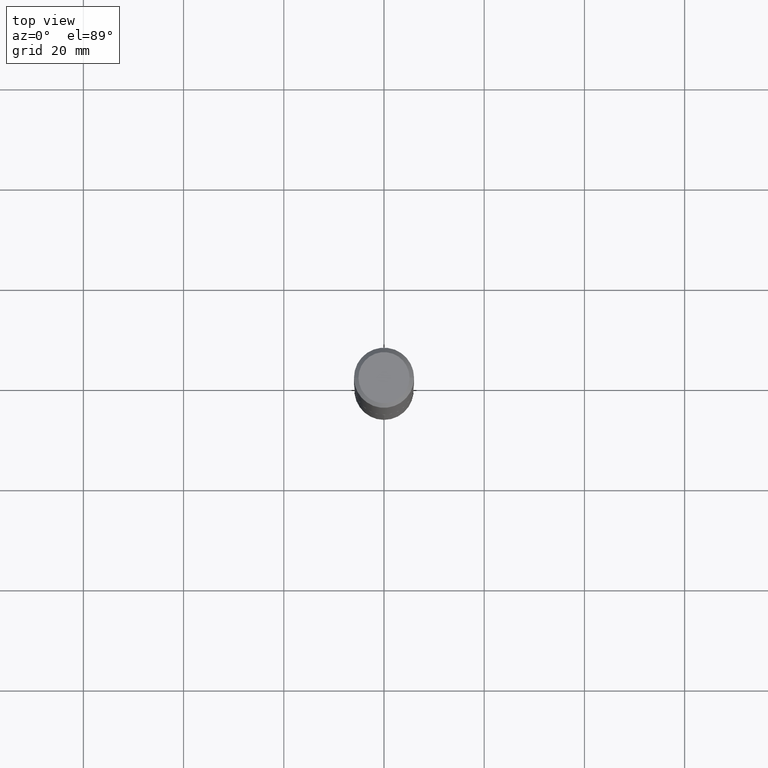
[diagram: clean part render]
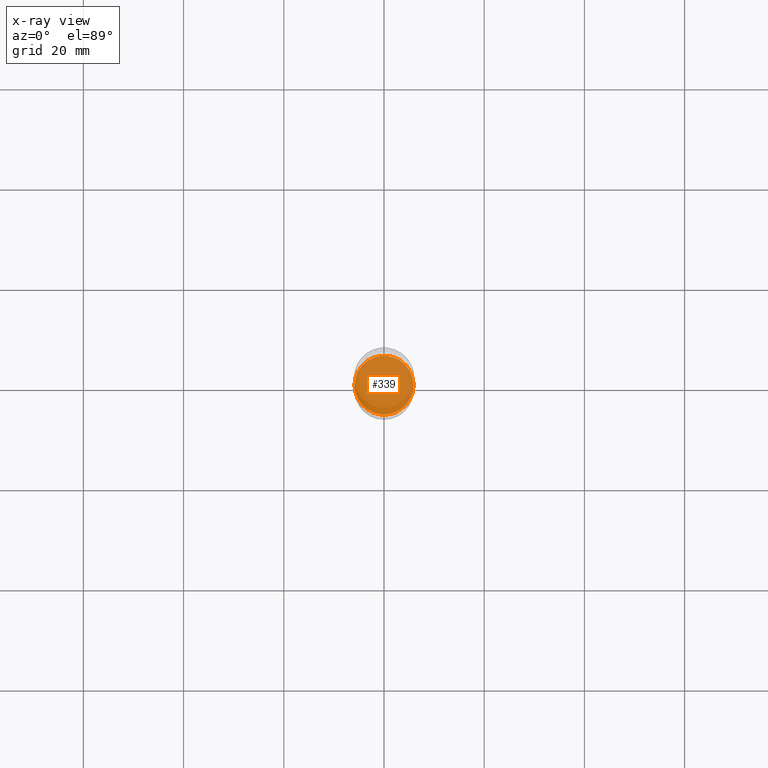
[diagram: x-ray — body ghosted, one internal face saturated and labeled with its STEP entity id]
A machine part, top view, then the same camera in x-ray: the body is ghosted and one INTERNAL B-rep face — a face not visible from any outside direction — is saturated and labeled: STEP entity #339.
In plain terms, the highlighted planar face has unit normal (-0, 0, 1).
Its self-contained STEP definition (entity closure, byte-faithful):
#17 = AXIS2_PLACEMENT_3D ( 'NONE', #234, #405, #372 ) ;
#30 = CARTESIAN_POINT ( 'NONE',  ( 8.423906396665941599E-29, -1.202710576791298553E-14, -3.444700000000000539 ) ) ;
#39 = ORIENTED_EDGE ( 'NONE', *, *, #314, .F. ) ;
#62 = DIRECTION ( 'NONE',  ( 1.000000000000000000, -6.982962677686265922E-15, 4.876176775795935793E-29 ) ) ;
#66 = CIRCLE ( 'NONE', #17, 0.2318000000000000060 ) ;
#98 = VERTEX_POINT ( 'NONE', #231 ) ;
#119 = AXIS2_PLACEMENT_3D ( 'NONE', #30, #211, #62 ) ;
#130 = EDGE_CURVE ( 'NONE', #435, #98, #262, .T. ) ;
#152 = AXIS2_PLACEMENT_3D ( 'NONE', #335, #200, #275 ) ;
#200 = DIRECTION ( 'NONE',  ( -2.445468806185136597E-29, 3.491481338843145583E-15, 1.000000000000000000 ) ) ;
#211 = DIRECTION ( 'NONE',  ( -2.438088387897960049E-29, 3.491481338843145188E-15, 1.000000000000000000 ) ) ;
#231 = CARTESIAN_POINT ( 'NONE',  ( -0.2318000000000000060, -1.037741847924696126E-14, -3.444700000000000539 ) ) ;
#234 = CARTESIAN_POINT ( 'NONE',  ( 8.423906396665941599E-29, -1.202710576791298553E-14, -3.444700000000000539 ) ) ;
#248 = FACE_OUTER_BOUND ( 'NONE', #301, .T. ) ;
#262 = CIRCLE ( 'NONE', #152, 0.2318000000000000060 ) ;
#275 = DIRECTION ( 'NONE',  ( 1.000000000000000000, -6.982962677686268288E-15, 0.000000000000000000 ) ) ;
#301 = EDGE_LOOP ( 'NONE', ( #327, #39 ) ) ;
#314 = EDGE_CURVE ( 'NONE', #98, #435, #66, .T. ) ;
#327 = ORIENTED_EDGE ( 'NONE', *, *, #130, .F. ) ;
#335 = CARTESIAN_POINT ( 'NONE',  ( 8.423906396665941599E-29, -1.202710576791298553E-14, -3.444700000000000539 ) ) ;
#339 = ADVANCED_FACE ( 'NONE', ( #248 ), #429, .F. ) ;
#355 = CARTESIAN_POINT ( 'NONE',  ( 0.2318000000000000060, -1.364575651660066201E-14, -3.444700000000000539 ) ) ;
#372 = DIRECTION ( 'NONE',  ( 1.000000000000000000, -6.982962677686268288E-15, 0.000000000000000000 ) ) ;
#405 = DIRECTION ( 'NONE',  ( -2.445468806185136597E-29, 3.491481338843145583E-15, 1.000000000000000000 ) ) ;
#429 = PLANE ( 'NONE',  #119 ) ;
#435 = VERTEX_POINT ( 'NONE', #355 ) ;